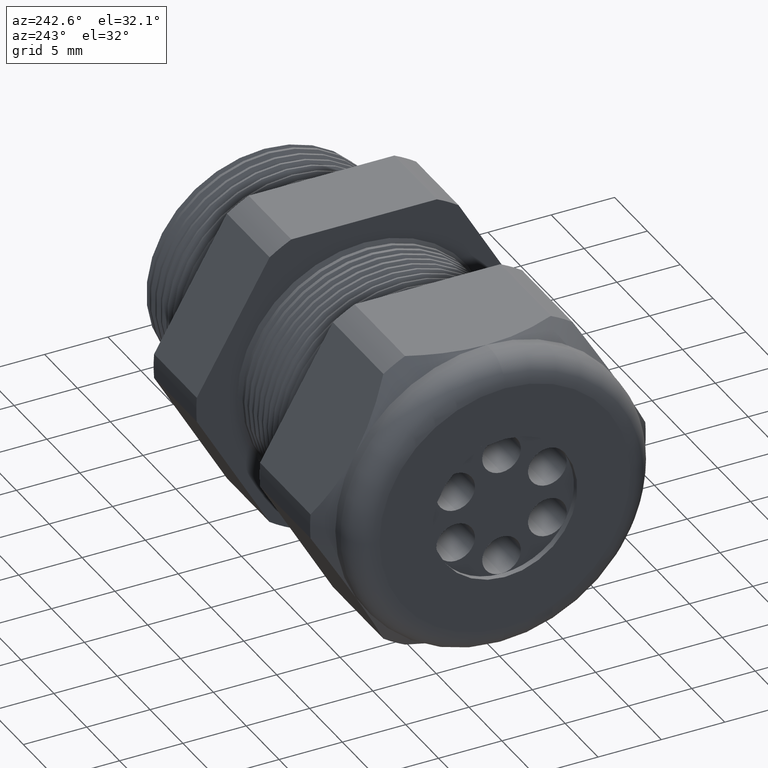
[diagram: clean part render]
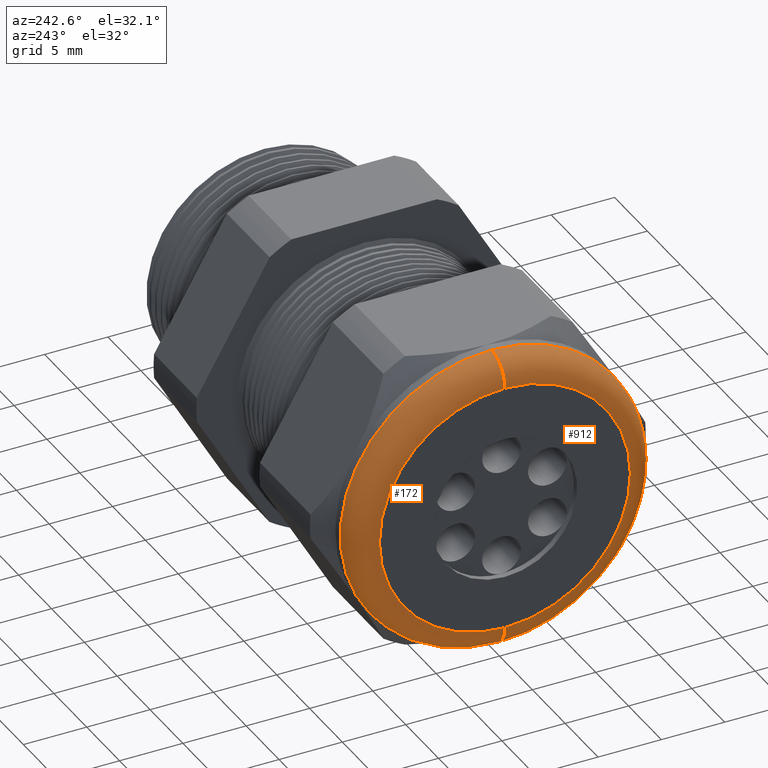
[diagram: same view with one multi-face feature highlighted, each face labeled with its STEP entity id]
A machine part, auxiliary view. The highlighted faces form ONE feature: a constant-radius fillet chain: 2 tangent blend faces with common blend radius 2.032 mm. The faces share edges in the B-rep.
Their STEP definitions:
[1] entity #912 (Torus):
#148 = VERTEX_POINT ( 'NONE', #2149 ) ;
#149 = VERTEX_POINT ( 'NONE', #2148 ) ;
#151 = EDGE_CURVE ( 'NONE', #148, #152, #2147, .T. ) ;
#152 = VERTEX_POINT ( 'NONE', #2142 ) ;
#155 = VERTEX_POINT ( 'NONE', #2136 ) ;
#157 = EDGE_CURVE ( 'NONE', #149, #155, #2134, .T. ) ;
#702 = EDGE_CURVE ( 'NONE', #152, #155, #3263, .T. ) ;
#762 = EDGE_CURVE ( 'NONE', #149, #148, #3346, .T. ) ;
#912 = ADVANCED_FACE ( 'NONE', ( #3631 ), #3627, .T. ) ;
#913 = EDGE_LOOP ( 'NONE', ( #914, #915, #916, #917 ) ) ;
#914 = ORIENTED_EDGE ( 'NONE', *, *, #151, .F. ) ;
#915 = ORIENTED_EDGE ( 'NONE', *, *, #762, .F. ) ;
#916 = ORIENTED_EDGE ( 'NONE', *, *, #157, .T. ) ;
#917 = ORIENTED_EDGE ( 'NONE', *, *, #702, .F. ) ;
#2130 = DIRECTION ( 'NONE',  ( 0.0000000000000000000, 0.0000000000000000000, -1.000000000000000000 ) ) ;
#2131 = DIRECTION ( 'NONE',  ( 0.0000000000000000000, -1.000000000000000000, 0.0000000000000000000 ) ) ;
#2132 = CARTESIAN_POINT ( 'NONE',  ( -1.330000000000000100, 0.0000000000000000000, 0.3899999999999999600 ) ) ;
#2133 = AXIS2_PLACEMENT_3D ( 'NONE', #2132, #2131, #2130 ) ;
#2134 = CIRCLE ( 'NONE', #2133, 0.07999999999999996000 ) ;
#2136 = CARTESIAN_POINT ( 'NONE',  ( -1.409999999999999900, 0.0000000000000000000, 0.3899999999999999600 ) ) ;
#2142 = CARTESIAN_POINT ( 'NONE',  ( -1.409999999999999900, 5.265981236333617600E-017, -0.3899999999999999600 ) ) ;
#2143 = DIRECTION ( 'NONE',  ( 0.0000000000000000000, -1.224646799147353900E-016, 1.000000000000000000 ) ) ;
#2144 = DIRECTION ( 'NONE',  ( 0.0000000000000000000, 1.000000000000000000, 1.224646799147353200E-016 ) ) ;
#2145 = CARTESIAN_POINT ( 'NONE',  ( -1.330000000000000100, 4.776122516674676800E-017, -0.3899999999999999600 ) ) ;
#2146 = AXIS2_PLACEMENT_3D ( 'NONE', #2145, #2144, #2143 ) ;
#2147 = CIRCLE ( 'NONE', #2146, 0.07999999999999996000 ) ;
#2148 = CARTESIAN_POINT ( 'NONE',  ( -1.330000000000000100, 5.755839955992558400E-017, 0.4699999999999999200 ) ) ;
#2149 = CARTESIAN_POINT ( 'NONE',  ( -1.330000000000000100, 0.0000000000000000000, -0.4699999999999999200 ) ) ;
#3259 = DIRECTION ( 'NONE',  ( 0.0000000000000000000, 0.0000000000000000000, 1.000000000000000000 ) ) ;
#3260 = DIRECTION ( 'NONE',  ( -1.000000000000000000, 0.0000000000000000000, 0.0000000000000000000 ) ) ;
#3261 = CARTESIAN_POINT ( 'NONE',  ( -1.409999999999999900, 0.0000000000000000000, 0.0000000000000000000 ) ) ;
#3262 = AXIS2_PLACEMENT_3D ( 'NONE', #3261, #3260, #3259 ) ;
#3263 = CIRCLE ( 'NONE', #3262, 0.3899999999999999600 ) ;
#3343 = DIRECTION ( 'NONE',  ( 0.0000000000000000000, 0.0000000000000000000, 1.000000000000000000 ) ) ;
#3344 = DIRECTION ( 'NONE',  ( 1.000000000000000000, 0.0000000000000000000, 0.0000000000000000000 ) ) ;
#3345 = AXIS2_PLACEMENT_3D ( 'NONE', #3351, #3344, #3343 ) ;
#3346 = CIRCLE ( 'NONE', #3345, 0.4699999999999999200 ) ;
#3351 = CARTESIAN_POINT ( 'NONE',  ( -1.330000000000000100, 0.0000000000000000000, 0.0000000000000000000 ) ) ;
#3623 = DIRECTION ( 'NONE',  ( 0.0000000000000000000, 0.0000000000000000000, 1.000000000000000000 ) ) ;
#3624 = DIRECTION ( 'NONE',  ( -1.000000000000000000, 0.0000000000000000000, 0.0000000000000000000 ) ) ;
#3625 = CARTESIAN_POINT ( 'NONE',  ( -1.330000000000000100, 0.0000000000000000000, 0.0000000000000000000 ) ) ;
#3626 = AXIS2_PLACEMENT_3D ( 'NONE', #3625, #3624, #3623 ) ;
#3627 = TOROIDAL_SURFACE ( 'NONE', #3626, 0.3899999999999999600, 0.08000000000000000200 ) ;
#3631 = FACE_OUTER_BOUND ( 'NONE', #913, .T. ) ;
[2] entity #172 (Torus):
#145 = EDGE_LOOP ( 'NONE', ( #146, #150, #153, #156 ) ) ;
#146 = ORIENTED_EDGE ( 'NONE', *, *, #147, .F. ) ;
#147 = EDGE_CURVE ( 'NONE', #148, #149, #2154, .T. ) ;
#148 = VERTEX_POINT ( 'NONE', #2149 ) ;
#149 = VERTEX_POINT ( 'NONE', #2148 ) ;
#150 = ORIENTED_EDGE ( 'NONE', *, *, #151, .T. ) ;
#151 = EDGE_CURVE ( 'NONE', #148, #152, #2147, .T. ) ;
#152 = VERTEX_POINT ( 'NONE', #2142 ) ;
#153 = ORIENTED_EDGE ( 'NONE', *, *, #154, .F. ) ;
#154 = EDGE_CURVE ( 'NONE', #155, #152, #2141, .T. ) ;
#155 = VERTEX_POINT ( 'NONE', #2136 ) ;
#156 = ORIENTED_EDGE ( 'NONE', *, *, #157, .F. ) ;
#157 = EDGE_CURVE ( 'NONE', #149, #155, #2134, .T. ) ;
#172 = ADVANCED_FACE ( 'NONE', ( #2161 ), #2160, .T. ) ;
#2130 = DIRECTION ( 'NONE',  ( 0.0000000000000000000, 0.0000000000000000000, -1.000000000000000000 ) ) ;
#2131 = DIRECTION ( 'NONE',  ( 0.0000000000000000000, -1.000000000000000000, 0.0000000000000000000 ) ) ;
#2132 = CARTESIAN_POINT ( 'NONE',  ( -1.330000000000000100, 0.0000000000000000000, 0.3899999999999999600 ) ) ;
#2133 = AXIS2_PLACEMENT_3D ( 'NONE', #2132, #2131, #2130 ) ;
#2134 = CIRCLE ( 'NONE', #2133, 0.07999999999999996000 ) ;
#2136 = CARTESIAN_POINT ( 'NONE',  ( -1.409999999999999900, 0.0000000000000000000, 0.3899999999999999600 ) ) ;
#2137 = DIRECTION ( 'NONE',  ( 0.0000000000000000000, 0.0000000000000000000, 1.000000000000000000 ) ) ;
#2138 = DIRECTION ( 'NONE',  ( -1.000000000000000000, 0.0000000000000000000, 0.0000000000000000000 ) ) ;
#2139 = CARTESIAN_POINT ( 'NONE',  ( -1.409999999999999900, 0.0000000000000000000, 0.0000000000000000000 ) ) ;
#2140 = AXIS2_PLACEMENT_3D ( 'NONE', #2139, #2138, #2137 ) ;
#2141 = CIRCLE ( 'NONE', #2140, 0.3899999999999999600 ) ;
#2142 = CARTESIAN_POINT ( 'NONE',  ( -1.409999999999999900, 5.265981236333617600E-017, -0.3899999999999999600 ) ) ;
#2143 = DIRECTION ( 'NONE',  ( 0.0000000000000000000, -1.224646799147353900E-016, 1.000000000000000000 ) ) ;
#2144 = DIRECTION ( 'NONE',  ( 0.0000000000000000000, 1.000000000000000000, 1.224646799147353200E-016 ) ) ;
#2145 = CARTESIAN_POINT ( 'NONE',  ( -1.330000000000000100, 4.776122516674676800E-017, -0.3899999999999999600 ) ) ;
#2146 = AXIS2_PLACEMENT_3D ( 'NONE', #2145, #2144, #2143 ) ;
#2147 = CIRCLE ( 'NONE', #2146, 0.07999999999999996000 ) ;
#2148 = CARTESIAN_POINT ( 'NONE',  ( -1.330000000000000100, 5.755839955992558400E-017, 0.4699999999999999200 ) ) ;
#2149 = CARTESIAN_POINT ( 'NONE',  ( -1.330000000000000100, 0.0000000000000000000, -0.4699999999999999200 ) ) ;
#2150 = DIRECTION ( 'NONE',  ( 0.0000000000000000000, 0.0000000000000000000, 1.000000000000000000 ) ) ;
#2151 = DIRECTION ( 'NONE',  ( 1.000000000000000000, 0.0000000000000000000, 0.0000000000000000000 ) ) ;
#2152 = CARTESIAN_POINT ( 'NONE',  ( -1.330000000000000100, 0.0000000000000000000, 0.0000000000000000000 ) ) ;
#2153 = AXIS2_PLACEMENT_3D ( 'NONE', #2152, #2151, #2150 ) ;
#2154 = CIRCLE ( 'NONE', #2153, 0.4699999999999999200 ) ;
#2160 = TOROIDAL_SURFACE ( 'NONE', #2220, 0.3899999999999999600, 0.08000000000000000200 ) ;
#2161 = FACE_OUTER_BOUND ( 'NONE', #145, .T. ) ;
#2217 = DIRECTION ( 'NONE',  ( 0.0000000000000000000, 0.0000000000000000000, 1.000000000000000000 ) ) ;
#2218 = DIRECTION ( 'NONE',  ( -1.000000000000000000, 0.0000000000000000000, 0.0000000000000000000 ) ) ;
#2219 = CARTESIAN_POINT ( 'NONE',  ( -1.330000000000000100, 0.0000000000000000000, 0.0000000000000000000 ) ) ;
#2220 = AXIS2_PLACEMENT_3D ( 'NONE', #2219, #2218, #2217 ) ;